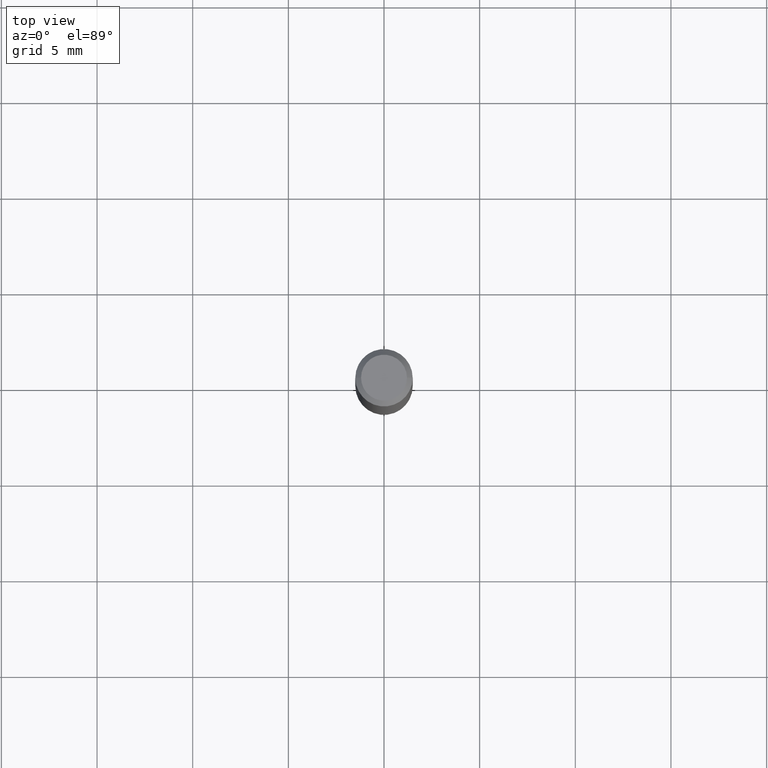
[diagram: clean part render]
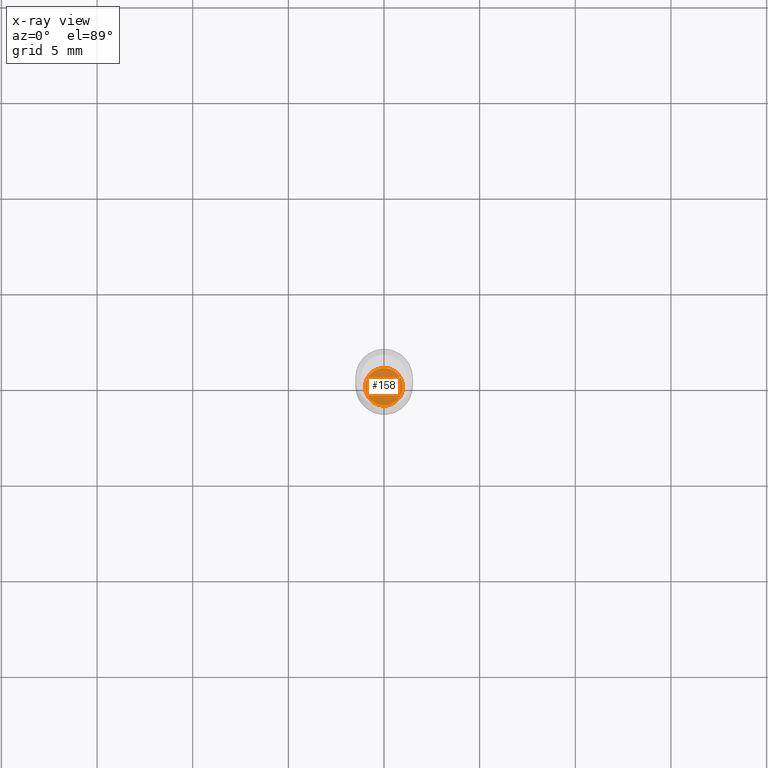
[diagram: x-ray — body ghosted, one internal face saturated and labeled with its STEP entity id]
A machine part, top view, then the same camera in x-ray: the body is ghosted and one INTERNAL B-rep face — a face not visible from any outside direction — is saturated and labeled: STEP entity #158.
In plain terms, the highlighted planar face has unit normal (-0, 0, 1).
Its self-contained STEP definition (entity closure, byte-faithful):
#10 = PLANE ( 'NONE',  #239 ) ;
#53 = AXIS2_PLACEMENT_3D ( 'NONE', #410, #260, #461 ) ;
#54 = CARTESIAN_POINT ( 'NONE',  ( 2.676565608369631794E-29, -3.821426325363822773E-15, -1.094499999999999806 ) ) ;
#56 = CARTESIAN_POINT ( 'NONE',  ( 2.676565608369631794E-29, -3.821426325363822773E-15, -1.094499999999999806 ) ) ;
#138 = CIRCLE ( 'NONE', #418, 0.03885000000000000259 ) ;
#141 = ORIENTED_EDGE ( 'NONE', *, *, #460, .F. ) ;
#158 = ADVANCED_FACE ( 'NONE', ( #163 ), #10, .F. ) ;
#161 = DIRECTION ( 'NONE',  ( -2.438088387897960049E-29, 3.491481338843145188E-15, 1.000000000000000000 ) ) ;
#163 = FACE_OUTER_BOUND ( 'NONE', #420, .T. ) ;
#170 = CIRCLE ( 'NONE', #53, 0.03885000000000000259 ) ;
#204 = DIRECTION ( 'NONE',  ( -2.445468806185136597E-29, 3.491481338843145583E-15, 1.000000000000000000 ) ) ;
#214 = VERTEX_POINT ( 'NONE', #349 ) ;
#239 = AXIS2_PLACEMENT_3D ( 'NONE', #56, #161, #358 ) ;
#242 = EDGE_CURVE ( 'NONE', #447, #214, #138, .T. ) ;
#260 = DIRECTION ( 'NONE',  ( -2.445468806185136597E-29, 3.491481338843145583E-15, 1.000000000000000000 ) ) ;
#349 = CARTESIAN_POINT ( 'NONE',  ( -0.03885000000000000259, -3.542731245346912681E-15, -1.094499999999999806 ) ) ;
#358 = DIRECTION ( 'NONE',  ( 1.000000000000000000, -6.982962677686265922E-15, 4.876176775795935793E-29 ) ) ;
#380 = ORIENTED_EDGE ( 'NONE', *, *, #242, .F. ) ;
#410 = CARTESIAN_POINT ( 'NONE',  ( 2.676565608369631794E-29, -3.821426325363822773E-15, -1.094499999999999806 ) ) ;
#418 = AXIS2_PLACEMENT_3D ( 'NONE', #54, #204, #469 ) ;
#420 = EDGE_LOOP ( 'NONE', ( #380, #141 ) ) ;
#447 = VERTEX_POINT ( 'NONE', #487 ) ;
#460 = EDGE_CURVE ( 'NONE', #214, #447, #170, .T. ) ;
#461 = DIRECTION ( 'NONE',  ( 1.000000000000000000, -6.982962677686269077E-15, 0.000000000000000000 ) ) ;
#469 = DIRECTION ( 'NONE',  ( 1.000000000000000000, -6.982962677686269077E-15, 0.000000000000000000 ) ) ;
#487 = CARTESIAN_POINT ( 'NONE',  ( 0.03885000000000000259, -4.092714425391933894E-15, -1.094499999999999806 ) ) ;